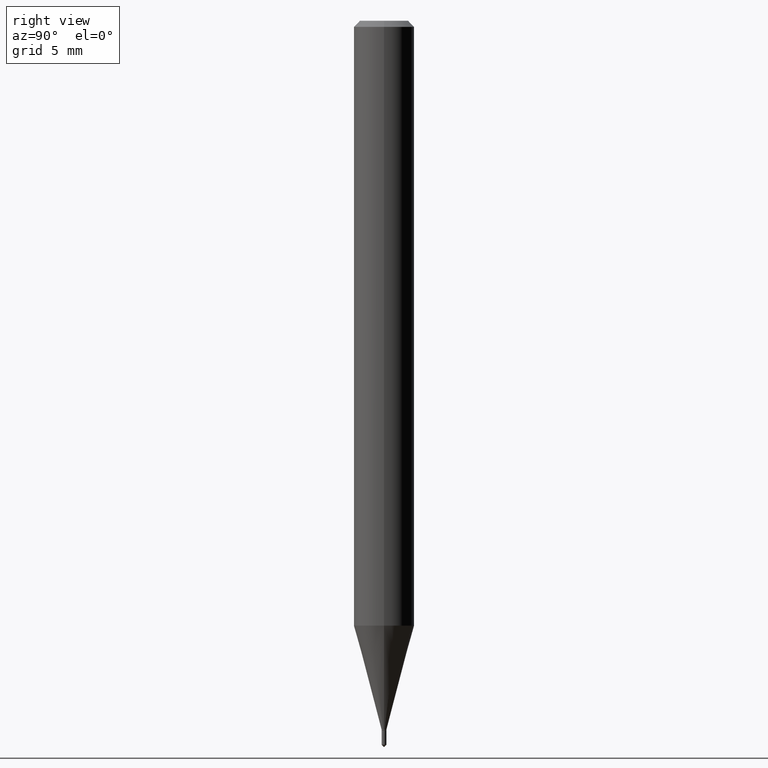
[diagram: clean part render]
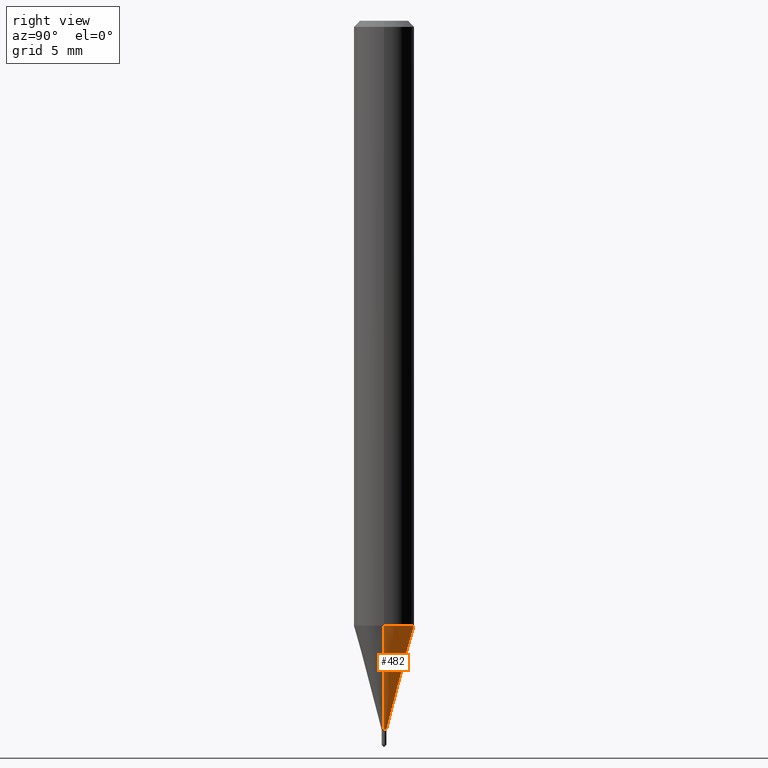
[diagram: same view with one face highlighted and labeled with its STEP entity id]
A machine part, right view. The second image highlights one B-rep face of the part: STEP entity #482.
In plain terms, the highlighted conical surface has half-angle 15 deg.
Its self-contained STEP definition (entity closure, byte-faithful):
#23 = ORIENTED_EDGE ( 'NONE', *, *, #59, .T. ) ;
#24 = CARTESIAN_POINT ( 'NONE',  ( 0.004999999999999999237, -5.144697752785376910E-15, -1.463500000000000467 ) ) ;
#39 = EDGE_LOOP ( 'NONE', ( #23, #484, #308, #185 ) ) ;
#41 = DIRECTION ( 'NONE',  ( -2.445468806185136597E-29, 3.491481338843145583E-15, 1.000000000000000000 ) ) ;
#51 = DIRECTION ( 'NONE',  ( 0.2588190451025213501, 1.565188264969621968E-15, 0.9659258262890682012 ) ) ;
#59 = EDGE_CURVE ( 'NONE', #390, #362, #487, .T. ) ;
#63 = CARTESIAN_POINT ( 'NONE',  ( 3.578943597851948324E-29, -5.109782939396945261E-15, -1.463500000000000467 ) ) ;
#88 = LINE ( 'NONE', #235, #219 ) ;
#93 = CARTESIAN_POINT ( 'NONE',  ( -0.004999999999999999237, -5.076001543278361723E-15, -1.463500000000000467 ) ) ;
#112 = FACE_OUTER_BOUND ( 'NONE', #39, .T. ) ;
#118 = DIRECTION ( 'NONE',  ( 1.000000000000000000, -6.982962677686269077E-15, 0.000000000000000000 ) ) ;
#125 = DIRECTION ( 'NONE',  ( -2.445468806185136597E-29, 3.491481338843145583E-15, 1.000000000000000000 ) ) ;
#140 = LINE ( 'NONE', #252, #456 ) ;
#149 = CONICAL_SURFACE ( 'NONE', #208, 0.004999999999999999237, 0.2617993877991500740 ) ;
#155 = CARTESIAN_POINT ( 'NONE',  ( -0.06250000000000013878, -3.916446548908011993E-15, -1.248907078564789996 ) ) ;
#185 = ORIENTED_EDGE ( 'NONE', *, *, #241, .F. ) ;
#188 = CARTESIAN_POINT ( 'NONE',  ( 3.578943597851948324E-29, -5.109782939396945261E-15, -1.463500000000000467 ) ) ;
#208 = AXIS2_PLACEMENT_3D ( 'NONE', #188, #41, #457 ) ;
#219 = VECTOR ( 'NONE', #51, 39.37007874015747433 ) ;
#222 = DIRECTION ( 'NONE',  ( 1.000000000000000000, -6.982962677686332975E-15, 0.000000000000000000 ) ) ;
#234 = CARTESIAN_POINT ( 'NONE',  ( 3.054163302454003505E-29, -4.360535758758074609E-15, -1.248907078564789996 ) ) ;
#235 = CARTESIAN_POINT ( 'NONE',  ( 0.004999999999999999237, -5.144697752785376910E-15, -1.463500000000000467 ) ) ;
#237 = EDGE_CURVE ( 'NONE', #393, #475, #386, .T. ) ;
#241 = EDGE_CURVE ( 'NONE', #390, #393, #88, .T. ) ;
#252 = CARTESIAN_POINT ( 'NONE',  ( -0.004999999999999999237, -5.074255802608940220E-15, -1.463500000000000467 ) ) ;
#295 = CARTESIAN_POINT ( 'NONE',  ( 0.06250000000000013878, -4.796970926113467068E-15, -1.248907078564789996 ) ) ;
#308 = ORIENTED_EDGE ( 'NONE', *, *, #237, .F. ) ;
#337 = DIRECTION ( 'NONE',  ( -2.445468806185136597E-29, 3.491481338843145583E-15, 1.000000000000000000 ) ) ;
#341 = AXIS2_PLACEMENT_3D ( 'NONE', #63, #337, #222 ) ;
#362 = VERTEX_POINT ( 'NONE', #93 ) ;
#386 = CIRCLE ( 'NONE', #441, 0.06250000000000015266 ) ;
#390 = VERTEX_POINT ( 'NONE', #24 ) ;
#393 = VERTEX_POINT ( 'NONE', #295 ) ;
#407 = DIRECTION ( 'NONE',  ( -0.2588190451025213501, 5.211531920934551042E-15, 0.9659258262890682012 ) ) ;
#422 = EDGE_CURVE ( 'NONE', #362, #475, #140, .T. ) ;
#441 = AXIS2_PLACEMENT_3D ( 'NONE', #234, #125, #118 ) ;
#456 = VECTOR ( 'NONE', #407, 39.37007874015747433 ) ;
#457 = DIRECTION ( 'NONE',  ( 1.000000000000000000, -6.982962677686332975E-15, 0.000000000000000000 ) ) ;
#475 = VERTEX_POINT ( 'NONE', #155 ) ;
#482 = ADVANCED_FACE ( 'NONE', ( #112 ), #149, .T. ) ;
#484 = ORIENTED_EDGE ( 'NONE', *, *, #422, .T. ) ;
#487 = CIRCLE ( 'NONE', #341, 0.004999999999999999237 ) ;